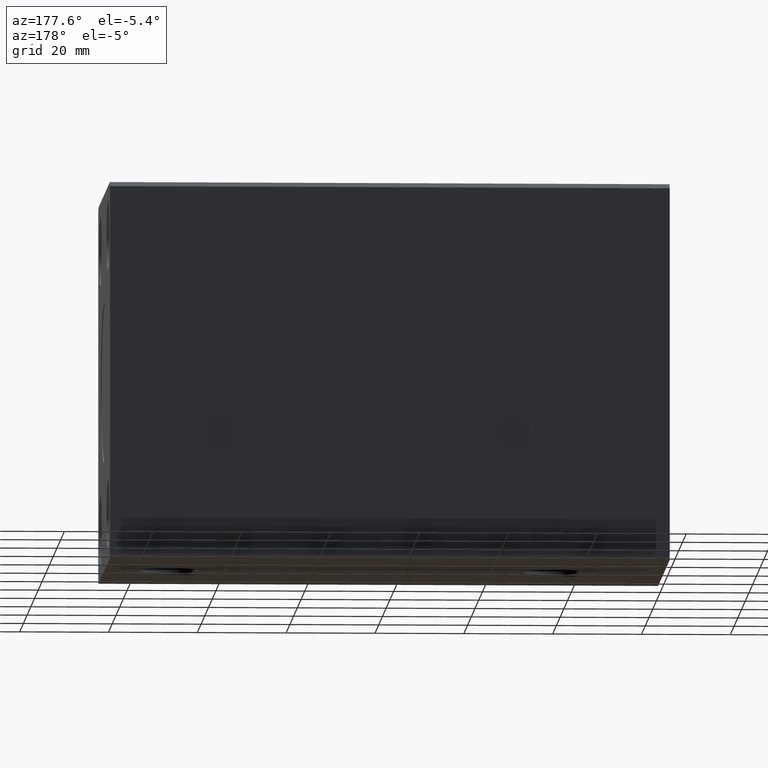
[diagram: clean part render]
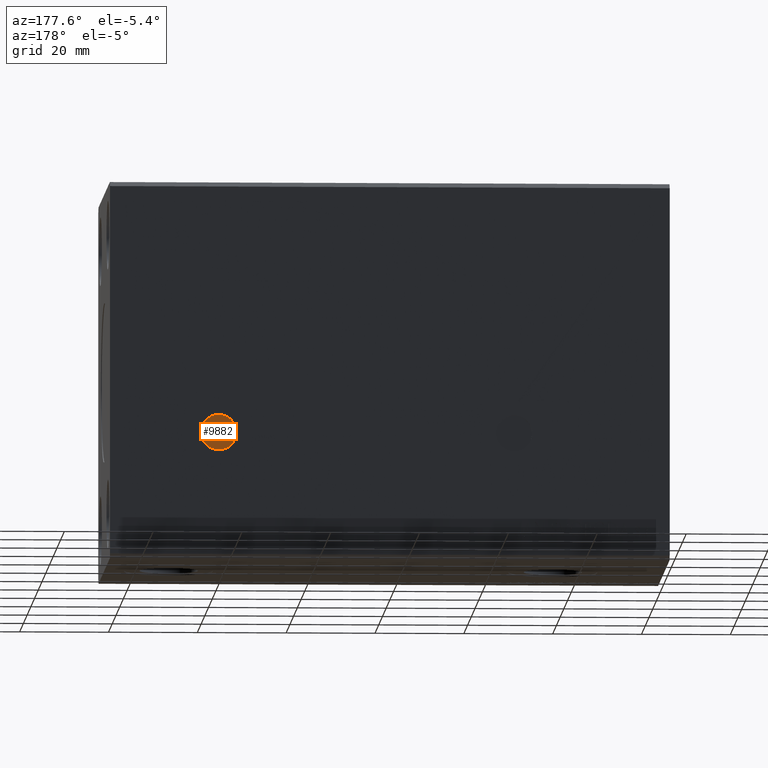
[diagram: same view with one face highlighted and labeled with its STEP entity id]
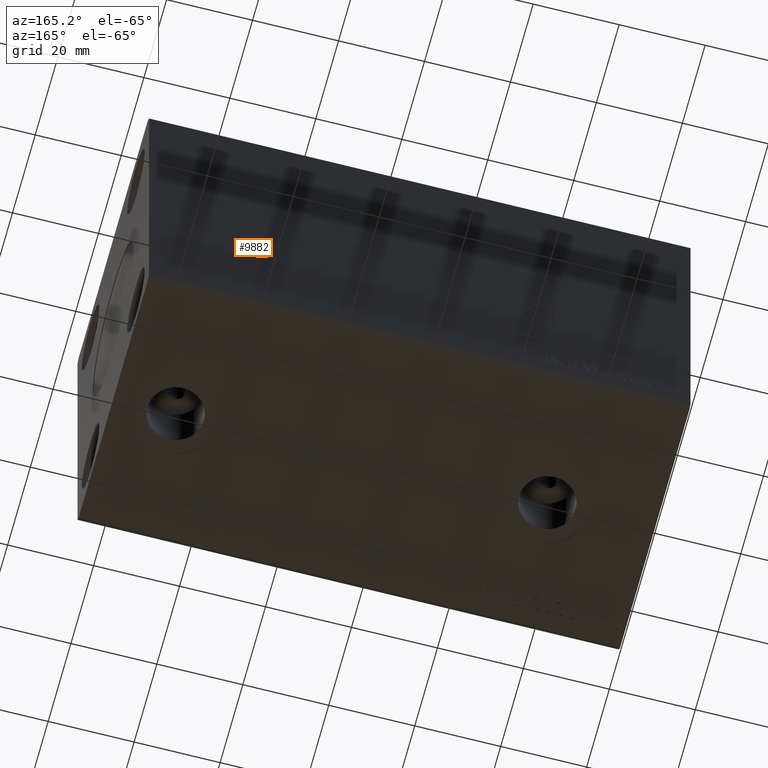
[diagram: same view with one face highlighted and labeled with its STEP entity id]
A machine part, auxiliary view. The second image highlights one B-rep face of the part: STEP entity #9882.
A second angle (auxiliary view) of the same face is appended — the face is thin or edge-on in the first view.
In plain terms, the highlighted planar face has unit normal (0, 1, 0).
Its self-contained STEP definition (entity closure, byte-faithful):
#886 = DIRECTION ( 'NONE',  ( 0.000000000000000000, 1.000000000000000000, 0.000000000000000000 ) ) ;
#1100 = PLANE ( 'NONE',  #1602 ) ;
#1520 = DIRECTION ( 'NONE',  ( 0.000000000000000000, -0.000000000000000000, 1.000000000000000000 ) ) ;
#1602 = AXIS2_PLACEMENT_3D ( 'NONE', #11596, #33733, #1520 ) ;
#2142 = EDGE_CURVE ( 'NONE', #19006, #37033, #33410, .T. ) ;
#3208 = EDGE_CURVE ( 'NONE', #37033, #19006, #42374, .T. ) ;
#6212 = ORIENTED_EDGE ( 'NONE', *, *, #2142, .T. ) ;
#8027 = AXIS2_PLACEMENT_3D ( 'NONE', #25647, #36378, #10195 ) ;
#9125 = CARTESIAN_POINT ( 'NONE',  ( 101.5000000000000000, 31.30000000000001492, -10.00000000000000178 ) ) ;
#9882 = ADVANCED_FACE ( 'NONE', ( #37371 ), #1100, .T. ) ;
#10195 = DIRECTION ( 'NONE',  ( 0.000000000000000000, 0.000000000000000000, 1.000000000000000000 ) ) ;
#11596 = CARTESIAN_POINT ( 'NONE',  ( 101.5000000000000000, 31.30000000000001492, -14.00000000000000888 ) ) ;
#16764 = CARTESIAN_POINT ( 'NONE',  ( 101.5000000000000000, 31.30000000000001492, -18.00000000000001421 ) ) ;
#19006 = VERTEX_POINT ( 'NONE', #9125 ) ;
#25647 = CARTESIAN_POINT ( 'NONE',  ( 101.5000000000000000, 31.30000000000001492, -14.00000000000000888 ) ) ;
#33410 = CIRCLE ( 'NONE', #8027, 4.000000000000007105 ) ;
#33533 = DIRECTION ( 'NONE',  ( 0.000000000000000000, 0.000000000000000000, 1.000000000000000000 ) ) ;
#33733 = DIRECTION ( 'NONE',  ( 0.000000000000000000, 1.000000000000000000, 0.000000000000000000 ) ) ;
#33945 = CARTESIAN_POINT ( 'NONE',  ( 101.5000000000000000, 31.30000000000001492, -14.00000000000000888 ) ) ;
#36378 = DIRECTION ( 'NONE',  ( 0.000000000000000000, 1.000000000000000000, 0.000000000000000000 ) ) ;
#37033 = VERTEX_POINT ( 'NONE', #16764 ) ;
#37371 = FACE_OUTER_BOUND ( 'NONE', #37760, .T. ) ;
#37544 = AXIS2_PLACEMENT_3D ( 'NONE', #33945, #886, #33533 ) ;
#37760 = EDGE_LOOP ( 'NONE', ( #6212, #39778 ) ) ;
#39778 = ORIENTED_EDGE ( 'NONE', *, *, #3208, .T. ) ;
#42374 = CIRCLE ( 'NONE', #37544, 4.000000000000007105 ) ;